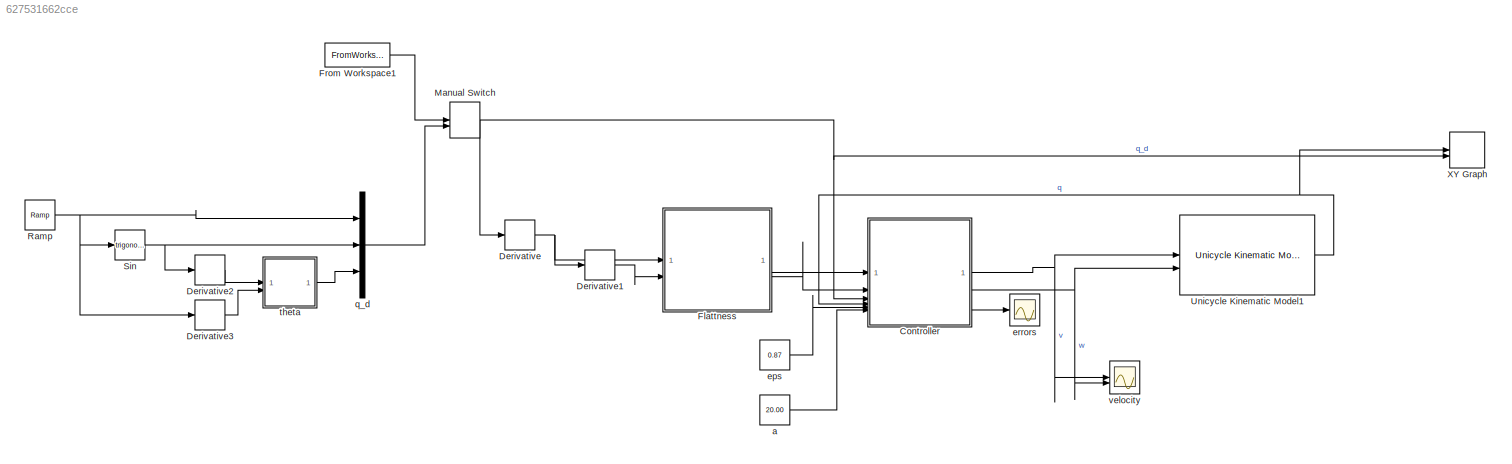
MODEL slx_627531662cce
KIND model
CONFIG AbsTol = auto
CONFIG EnableMultiTasking = off
CONFIG FixedStep = auto
CONFIG MaxStep = auto
CONFIG MinStep = auto
CONFIG RelTol = 1e-3
CONFIG SampleTimeConstraint = Unconstrained
CONFIG SolverName = VariableStepAuto
CONFIG StartTime = 0.0
CONFIG StopTime = 10
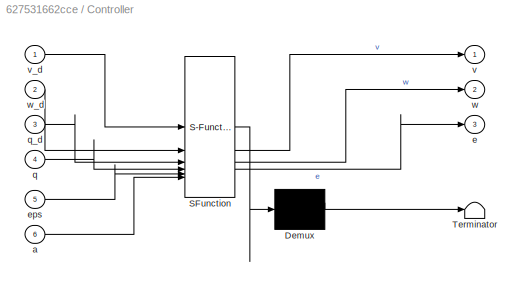
BLOCK [SubSystem] Controller
  ErrorFcn = Stateflow.Translate.translate
  PermitHierarchicalResolution = ExplicitOnly
  SFBlockType = MATLAB Function
  TreatAsAtomicUnit = on
BLOCK [Demux] Controller/ Demux 
  Outputs = 1
BLOCK [S-Function] Controller/ SFunction 
  EnableBusSupport = off
  FunctionName = sf_sfun
  PortCounts = [6 4]
  SFcnIsStateOwnerBlock = off
  SFunctionDeploymentMode = off
  Tag = Stateflow S-Function 1
BLOCK [Terminator] Controller/ Terminator 
BLOCK [Inport] Controller/a
  Port = 6
BLOCK [Outport] Controller/e
  Port = 3
BLOCK [Inport] Controller/eps
  Port = 5
BLOCK [Inport] Controller/q
  Port = 4
BLOCK [Inport] Controller/q_d
  Port = 3
BLOCK [Outport] Controller/v
BLOCK [Inport] Controller/v_d
BLOCK [Outport] Controller/w
  Port = 2
BLOCK [Inport] Controller/w_d
  Port = 2
BLOCK [Derivative] Derivative
BLOCK [Derivative] Derivative1
BLOCK [Derivative] Derivative2
BLOCK [Derivative] Derivative3
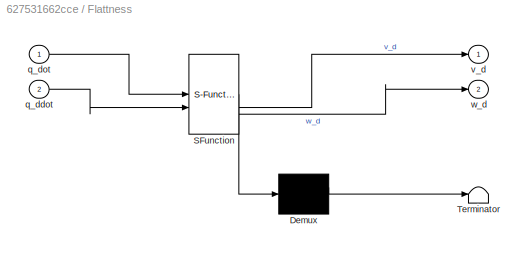
BLOCK [SubSystem] Flattness
  ErrorFcn = Stateflow.Translate.translate
  PermitHierarchicalResolution = ExplicitOnly
  SFBlockType = MATLAB Function
  TreatAsAtomicUnit = on
BLOCK [Demux] Flattness/ Demux 
  Outputs = 1
BLOCK [S-Function] Flattness/ SFunction 
  EnableBusSupport = off
  FunctionName = sf_sfun
  PortCounts = [2 3]
  SFcnIsStateOwnerBlock = off
  SFunctionDeploymentMode = off
  Tag = Stateflow S-Function 2
BLOCK [Terminator] Flattness/ Terminator 
BLOCK [Inport] Flattness/q_ddot
  Port = 2
BLOCK [Inport] Flattness/q_dot
BLOCK [Outport] Flattness/v_d
BLOCK [Outport] Flattness/w_d
  Port = 2
BLOCK [FromWorkspace] From Workspace1
  VariableName = q_d_new
BLOCK [ManualSwitch] Manual Switch
BLOCK [Reference] Ramp  REF=simulink/Sources/Ramp
  SourceBlock = simulink/Sources/Ramp
  SourceType = Ramp
BLOCK [Trigonometry] Sin
BLOCK [Reference] Unicycle Kinematic Model1  REF=robotmobilelib/Unicycle Kinematic Model
  SourceBlock = robotmobilelib/Unicycle Kinematic Model
  SourceType = Unicycle Kinematic Model
BLOCK [Record] XY Graph
  CompatibilityTag = XY
  FileSettingsInternal = {"entries":[{"content":{"excelSettings":{"content":{},"type":"Streamout.ExcelSettings"},"parquetSettings":{"content":{},"type":"Streamout.ParquetSettings"}},"type":"Streamout.FileSettingStorage","uuid":""}],"packageUris":["http:\/\/schema.mathworks.com\/mf0\/streamout_blocks\/R2020a"],"version":"1.0"}
  FrameSettings = [0, 0]
  Layout = [1 1]
  NumPorts = 2.0
  SignalsInternal = {"entries":[{"content":{"signals":[{"content":{"blockPath":[],"dimensions":[3],"domain":"","hasChildren":true,"lineColor":"#d95319","lineWidth":2,"port":1,"signalID":1,"signalName":"q"},"type":"RecordBlkView.Signal","uuid":""},{"content":{"blockPath":[],"channel":[1],"dimensions":[3],"domain":"","lineColor":"#139fff","lineWidth":2,"parentID":1,"plots":[ 1 ],"port":1,"signalID":2,"signalName":"q"},...<+1428ch>
  VisualizationBindings = {"xyplotplugin":{"info":[{"series":[{"bindingParametersList":[{"parameter":"X-Axis","signalID":2,"signalName":"q(1)"},{"parameter":"Y-Axis","signalID":3,"signalName":"q(2)"}],"seriesID":0},{"bindingParametersList":[{"parameter":"X-Axis","signalID":6,"signalName":"q_d(1)"},{"parameter":"Y-Axis","signalID":7,"signalName":"q_d(2)"}],"seriesID":1}],"subplotID":1}]}}
BLOCK [Constant] a
  Value = 20.00
BLOCK [Constant] eps
  Value = 0.87
BLOCK [Scope] errors
  ActiveDisplayYMaximum = 0.571031098688352
  ActiveDisplayYMinimum = -0.47839417528874334
  DataLoggingVariableName = ScopeData1
  Floating = off
  GraphicalSettings = {"AxesScalingProperties":{"AlignXAxis":"Center","AlignYAxis":"Center","AutoScaleXAxisLimits":false,"AxesScaling":"Manual","AxesScalingNumUpdates":10,"ExpandOnly":true,"ScaleAxesLimitsAtStop":false,"XAxisDataRange":100,"YAxisDataRange":80},"DisplayProperties":{"ColorOrder":["auto","auto","auto","auto","auto","auto","auto","auto","auto","auto","auto","auto","auto","auto","auto","auto","auto","auto",...<+2288ch>
  MultipleDisplayCache = [{"MaxYLimMag":1.0842291060106271,"MaxYLimReal":0.571031098688352,"MinYLimMag":0,"MinYLimReal":-0.47839417528874334,"PlotAsMagnitudePhase":false,"ShowGrid":true,"ShowLegend":false,"Title":"%<SignalLabel>","YLabel":""}]
  NumInputPorts = 1
  ScopeFrameLocation = window
  WasSavedAsWebScope = on
  WindowPosition = [150.000000,83.000000,1150.000000,608.000000,]
BLOCK [Mux] q_d
  DisplayOption = bar
  Inputs = 3
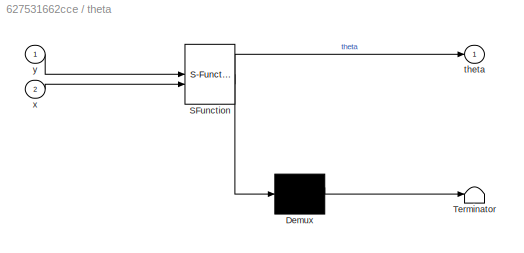
BLOCK [SubSystem] theta
  ErrorFcn = Stateflow.Translate.translate
  PermitHierarchicalResolution = ExplicitOnly
  SFBlockType = MATLAB Function
  TreatAsAtomicUnit = on
BLOCK [Demux] theta/ Demux 
  Outputs = 1
BLOCK [S-Function] theta/ SFunction 
  EnableBusSupport = off
  FunctionName = sf_sfun
  PortCounts = [2 2]
  SFcnIsStateOwnerBlock = off
  SFunctionDeploymentMode = off
  Tag = Stateflow S-Function 3
BLOCK [Terminator] theta/ Terminator 
BLOCK [Outport] theta/theta
BLOCK [Inport] theta/x
  Port = 2
BLOCK [Inport] theta/y
BLOCK [Scope] velocity
  ActiveDisplayYMaximum = 1.9857287028034824E+8
  ActiveDisplayYMinimum = -1.495737861263254E+8
  Floating = off
  GraphicalSettings = {"AxesScalingProperties":{"AlignXAxis":"Center","AlignYAxis":"Center","AutoScaleXAxisLimits":false,"AxesScaling":"Manual","AxesScalingNumUpdates":10,"ExpandOnly":true,"ScaleAxesLimitsAtStop":false,"XAxisDataRange":100,"YAxisDataRange":80},"DisplayProperties":{"ColorOrder":["auto","auto","auto","auto","auto","auto","auto","auto","auto","auto","auto","auto","auto","auto","auto","auto","auto","auto",...<+2097ch>
  MultipleDisplayCache = [{"MaxYLimMag":1.0842291060106271,"MaxYLimReal":1.9857287028034824E+8,"MinYLimMag":0,"MinYLimReal":-1.495737861263254E+8,"PlotAsMagnitudePhase":false,"ShowGrid":true,"ShowLegend":false,"Title":"%<SignalLabel>","YLabel":""}]
  NumInputPorts = 2
  ScopeFrameLocation = window
  WasSavedAsWebScope = on
  WindowPosition = [225.000000,204.000000,1150.000000,608.000000,]
NET Controller:1 -> Unicycle Kinematic Model1:1, velocity:1
NET Controller:2 -> Unicycle Kinematic Model1:2, velocity:2
LINE Controller:3 -> errors:1
LINE Derivative1:1 -> Flattness:2
LINE Derivative2:1 -> theta:1
LINE Derivative3:1 -> theta:2
NET Derivative:1 -> Derivative1:1, Flattness:1
LINE Flattness:1 -> Controller:1
LINE Flattness:2 -> Controller:2
LINE From Workspace1:1 -> Manual Switch:1
NET Manual Switch:1 -> Controller:3, Derivative:1, XY Graph:2
NET Ramp:1 -> Derivative3:1, Sin:1, q_d:1
NET Sin:1 -> Derivative2:1, q_d:2
NET Unicycle Kinematic Model1:1 -> Controller:4, XY Graph:1
LINE a:1 -> Controller:6
LINE eps:1 -> Controller:5
LINE q_d:1 -> Manual Switch:2
LINE theta:1 -> q_d:3
note: NET lines group one-source signal fan-out (src -> all destinations, sorted); 1:1 wires keep LINE
CHART Controller states=1 transitions=1
  STATE_LABEL 'eML_blk_kernel()'
  STATE_LABEL 'SCRIPT:\nfunction [v, w, e]= ctrl(v_d, w_d, q_d, q, eps, a)\n\n% Get desired state\nx_d = q_d(1);\ny_d = q_d(2);\ntheta_d = q_d(3);\n\n% Get (real) theta\nx = q(1);\ny = q(2);\ntheta = q(3);\n\nv_d_t = v_d;\n\n% Check if v_d is 0\nif abs(v_d) < 1e-4\n    if v_d >= 0\n        v_d_t = 1e-4;\n    else\n        v_d_t = -1e-4;\n    end\nend\n\nk1 = 2 * eps * a;\nk2 = (a^2 - w_d^2) / v_d_t;\nk3 = k1;\n\n% Compute errors\ne1 = x_d -...<+225ch>'
CHART Flattness states=1 transitions=1
  STATE_LABEL 'eML_blk_kernel()'
  STATE_LABEL 'SCRIPT:\nfunction [v_d,w_d] = flat(q_dot, q_ddot)\n\nx_dot = q_dot(1);\ny_dot = q_dot(2);\n\nx_ddot = q_ddot(1);\ny_ddot = q_ddot(2);\n\nnorm_2 = x_dot^2 + y_dot^2;\n\nv_d = sqrt(norm_2);\n%w_d = q_ddot(3);\nif norm_2 <= 1e-4\n   w_d = 1e-4;\nelse\n    w_d = (x_dot * y_ddot - x_ddot * y_dot) / (norm_2);\nend\n\n\n'
CHART theta states=1 transitions=1
  STATE_LABEL 'eML_blk_kernel()'
  STATE_LABEL 'SCRIPT:\nfunction theta = atan2(y, x)\n\ntheta = atan2(y, x);\n\n'
CHART  states=0 transitions=0
CHART  states=0 transitions=0
CHART  states=0 transitions=0
